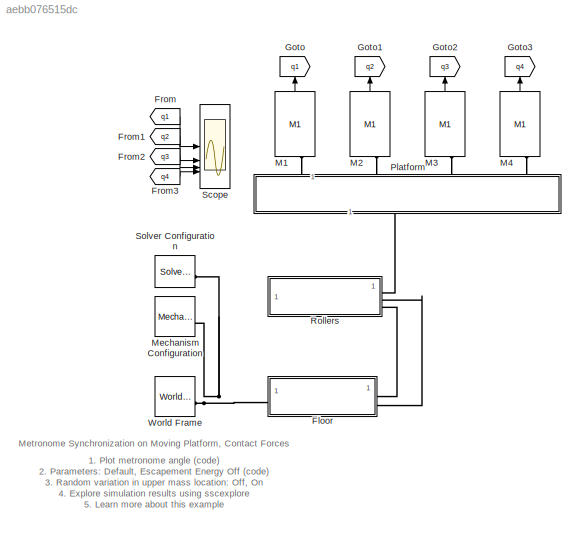
MODEL slx_aebb076515dc
KIND model
CONFIG AbsTol = 1e-3
CONFIG EnableMultiTasking = on
CONFIG MaxStep = 1e-2
CONFIG PreLoadFcn = sm_metronome_sync_param
CONFIG SolverName = ode23t
CONFIG StopTime = 5.52*20
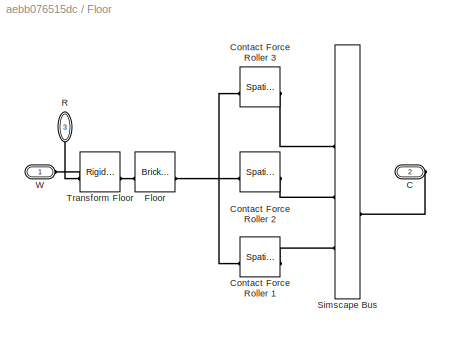
BLOCK [SubSystem] Floor
BLOCK [PMIOPort] Floor/C
  Port = 2
  Side = Right
BLOCK [Reference] Floor/Contact Force Roller 1  REF=sm_lib/Forces and
Torques/Spatial
Contact Force
  SourceBlock = sm_lib/Forces and\nTorques/Spatial\nContact Force
  SourceType = Spatial\nContact Force
BLOCK [Reference] Floor/Contact Force Roller 2  REF=sm_lib/Forces and
Torques/Spatial
Contact Force
  SourceBlock = sm_lib/Forces and\nTorques/Spatial\nContact Force
  SourceType = Spatial\nContact Force
BLOCK [Reference] Floor/Contact Force Roller 3  REF=sm_lib/Forces and
Torques/Spatial
Contact Force
  SourceBlock = sm_lib/Forces and\nTorques/Spatial\nContact Force
  SourceType = Spatial\nContact Force
BLOCK [Reference] Floor/Floor  REF=sm_lib/Body Elements/Brick Solid
  SourceBlock = sm_lib/Body Elements/Brick Solid
  SourceType = Brick Solid
BLOCK [PMIOPort] Floor/R
  NameLocation = right
  Port = 3
  Side = Right
BLOCK [SimscapeBus] Floor/Simscape Bus
  HierarchyStrings = R3;R2;R1
BLOCK [Reference] Floor/Transform Floor  REF=sm_lib/Frames and
Transforms/Rigid
Transform
  SourceBlock = sm_lib/Frames and\nTransforms/Rigid\nTransform
  SourceType = Rigid\nTransform
BLOCK [PMIOPort] Floor/W
  Side = Left
BLOCK [From] From
  GotoTag = q1
BLOCK [From] From1
  GotoTag = q2
BLOCK [From] From2
  GotoTag = q3
BLOCK [From] From3
  GotoTag = q4
BLOCK [Goto] Goto
  GotoTag = q1
  NameLocation = right
BLOCK [Goto] Goto1
  GotoTag = q2
  NameLocation = right
BLOCK [Goto] Goto2
  GotoTag = q3
  NameLocation = right
BLOCK [Goto] Goto3
  GotoTag = q4
  NameLocation = right
BLOCK [Reference] M1  REF=sm_metronome_lib/M1  (lib defined in slx_9433ba20aabc)
  NameLocation = right
  SourceBlock = sm_metronome_lib/M1
  SourceType = Metronome
BLOCK [Reference] M2  REF=sm_metronome_lib/M1  (lib defined in slx_9433ba20aabc)
  NameLocation = right
  SourceBlock = sm_metronome_lib/M1
  SourceType = Metronome
BLOCK [Reference] M3  REF=sm_metronome_lib/M1  (lib defined in slx_9433ba20aabc)
  NameLocation = right
  SourceBlock = sm_metronome_lib/M1
  SourceType = Metronome
BLOCK [Reference] M4  REF=sm_metronome_lib/M1  (lib defined in slx_9433ba20aabc)
  NameLocation = right
  SourceBlock = sm_metronome_lib/M1
  SourceType = Metronome
BLOCK [Reference] Mechanism Configuration  REF=sm_lib/Utilities/Mechanism
Configuration
  SourceBlock = sm_lib/Utilities/Mechanism\nConfiguration
  SourceType = Mechanism\nConfiguration
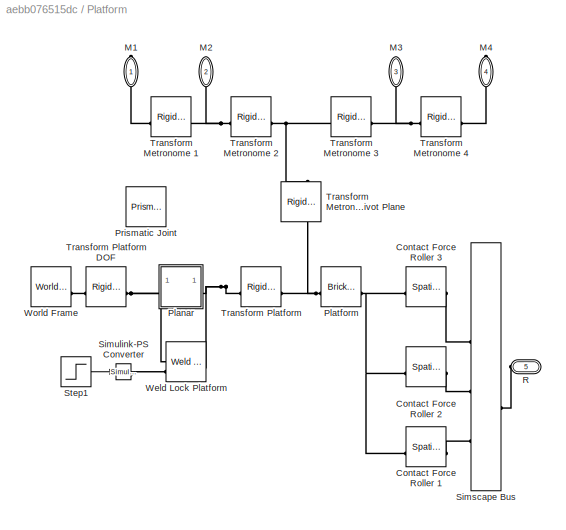
BLOCK [SubSystem] Platform
  NameLocation = right
BLOCK [Reference] Platform/Contact Force Roller 1  REF=sm_lib/Forces and
Torques/Spatial
Contact Force
  SourceBlock = sm_lib/Forces and\nTorques/Spatial\nContact Force
  SourceType = Spatial\nContact Force
BLOCK [Reference] Platform/Contact Force Roller 2  REF=sm_lib/Forces and
Torques/Spatial
Contact Force
  SourceBlock = sm_lib/Forces and\nTorques/Spatial\nContact Force
  SourceType = Spatial\nContact Force
BLOCK [Reference] Platform/Contact Force Roller 3  REF=sm_lib/Forces and
Torques/Spatial
Contact Force
  SourceBlock = sm_lib/Forces and\nTorques/Spatial\nContact Force
  SourceType = Spatial\nContact Force
BLOCK [PMIOPort] Platform/M1
  NameLocation = right
  Side = Right
BLOCK [PMIOPort] Platform/M2
  NameLocation = right
  Port = 2
  Side = Right
BLOCK [PMIOPort] Platform/M3
  NameLocation = left
  Port = 3
  Side = Right
BLOCK [PMIOPort] Platform/M4
  NameLocation = left
  Port = 4
  Side = Right
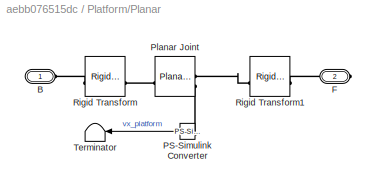
BLOCK [SubSystem] Platform/Planar
BLOCK [PMIOPort] Platform/Planar/B
  Side = Left
BLOCK [PMIOPort] Platform/Planar/F
  Port = 2
  Side = Right
BLOCK [Reference] Platform/Planar/PS-Simulink Converter  REF=nesl_utility/PS-Simulink
Converter
  NameLocation = top
  SourceBlock = nesl_utility/PS-Simulink\nConverter
  SourceType = PS-Simulink\nConverter
BLOCK [Reference] Platform/Planar/Planar Joint  REF=sm_lib/Joints/Planar Joint
  SourceBlock = sm_lib/Joints/Planar Joint
  SourceType = Planar Joint
BLOCK [Reference] Platform/Planar/Rigid Transform  REF=sm_lib/Frames and
Transforms/Rigid
Transform
  SourceBlock = sm_lib/Frames and\nTransforms/Rigid\nTransform
  SourceType = Rigid\nTransform
BLOCK [Reference] Platform/Planar/Rigid Transform1  REF=sm_lib/Frames and
Transforms/Rigid
Transform
  SourceBlock = sm_lib/Frames and\nTransforms/Rigid\nTransform
  SourceType = Rigid\nTransform
BLOCK [Terminator] Platform/Planar/Terminator
  NameLocation = top
BLOCK [Reference] Platform/Platform  REF=sm_lib/Body Elements/Brick Solid
  SourceBlock = sm_lib/Body Elements/Brick Solid
  SourceType = Brick Solid
BLOCK [Reference] Platform/Prismatic Joint  REF=sm_lib/Joints/Prismatic
Joint
  Commented = on
  SourceBlock = sm_lib/Joints/Prismatic\nJoint
  SourceType = Prismatic\nJoint
BLOCK [PMIOPort] Platform/R
  Port = 5
  Side = Left
BLOCK [SimscapeBus] Platform/Simscape Bus
  HierarchyStrings = R3;R2;R1
BLOCK [Reference] Platform/Simulink-PS Converter  REF=nesl_utility/Simulink-PS
Converter
  NameLocation = top
  SourceBlock = nesl_utility/Simulink-PS\nConverter
  SourceType = Simulink-PS\nConverter
BLOCK [Step] Platform/Step1
  FinalValue = -1
  NameLocation = top
  SampleTime = 0
  Time = t_unlock
BLOCK [Reference] Platform/Transform Metronome 1  REF=sm_lib/Frames and
Transforms/Rigid
Transform
  SourceBlock = sm_lib/Frames and\nTransforms/Rigid\nTransform
  SourceType = Rigid\nTransform
BLOCK [Reference] Platform/Transform Metronome 2  REF=sm_lib/Frames and
Transforms/Rigid
Transform
  SourceBlock = sm_lib/Frames and\nTransforms/Rigid\nTransform
  SourceType = Rigid\nTransform
BLOCK [Reference] Platform/Transform Metronome 3  REF=sm_lib/Frames and
Transforms/Rigid
Transform
  SourceBlock = sm_lib/Frames and\nTransforms/Rigid\nTransform
  SourceType = Rigid\nTransform
BLOCK [Reference] Platform/Transform Metronome 4  REF=sm_lib/Frames and
Transforms/Rigid
Transform
  SourceBlock = sm_lib/Frames and\nTransforms/Rigid\nTransform
  SourceType = Rigid\nTransform
BLOCK [Reference] Platform/Transform Metronome Pivot Plane  REF=sm_lib/Frames and
Transforms/Rigid
Transform
  NameLocation = right
  SourceBlock = sm_lib/Frames and\nTransforms/Rigid\nTransform
  SourceType = Rigid\nTransform
BLOCK [Reference] Platform/Transform Platform  REF=sm_lib/Frames and
Transforms/Rigid
Transform
  SourceBlock = sm_lib/Frames and\nTransforms/Rigid\nTransform
  SourceType = Rigid\nTransform
BLOCK [Reference] Platform/Transform Platform DOF  REF=sm_lib/Frames and
Transforms/Rigid
Transform
  SourceBlock = sm_lib/Frames and\nTransforms/Rigid\nTransform
  SourceType = Rigid\nTransform
BLOCK [Reference] Platform/Weld Lock Platform  REF=sm_lib/Joints/Weld Joint
  SourceBlock = sm_lib/Joints/Weld Joint
  SourceType = Weld Joint
BLOCK [Reference] Platform/World Frame  REF=sm_lib/Frames and
Transforms/World Frame
  SourceBlock = sm_lib/Frames and\nTransforms/World Frame
  SourceType = World Frame
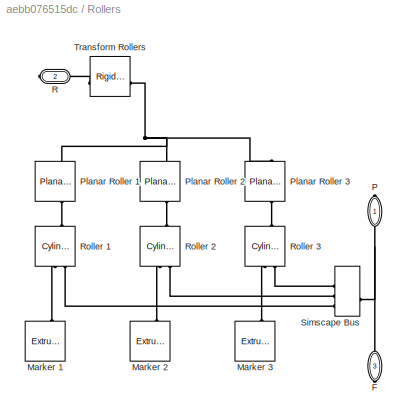
BLOCK [SubSystem] Rollers
BLOCK [PMIOPort] Rollers/F
  NameLocation = left
  Port = 3
  Side = Right
BLOCK [Reference] Rollers/Marker 1  REF=sm_lib/Body Elements/Extruded Solid
  NameLocation = right
  SourceBlock = sm_lib/Body Elements/Extruded Solid
  SourceType = Extruded Solid
BLOCK [Reference] Rollers/Marker 2  REF=sm_lib/Body Elements/Extruded Solid
  NameLocation = right
  SourceBlock = sm_lib/Body Elements/Extruded Solid
  SourceType = Extruded Solid
BLOCK [Reference] Rollers/Marker 3  REF=sm_lib/Body Elements/Extruded Solid
  NameLocation = right
  SourceBlock = sm_lib/Body Elements/Extruded Solid
  SourceType = Extruded Solid
BLOCK [PMIOPort] Rollers/P
  NameLocation = left
  Side = Right
BLOCK [Reference] Rollers/Planar Roller 1  REF=sm_lib/Joints/Planar Joint
  NameLocation = right
  SourceBlock = sm_lib/Joints/Planar Joint
  SourceType = Planar Joint
BLOCK [Reference] Rollers/Planar Roller 2  REF=sm_lib/Joints/Planar Joint
  NameLocation = right
  SourceBlock = sm_lib/Joints/Planar Joint
  SourceType = Planar Joint
BLOCK [Reference] Rollers/Planar Roller 3  REF=sm_lib/Joints/Planar Joint
  NameLocation = right
  SourceBlock = sm_lib/Joints/Planar Joint
  SourceType = Planar Joint
BLOCK [PMIOPort] Rollers/R
  Port = 2
  Side = Right
BLOCK [Reference] Rollers/Roller 1  REF=sm_lib/Body Elements/Cylindrical Solid
  NameLocation = right
  SourceBlock = sm_lib/Body Elements/Cylindrical Solid
  SourceType = Cylindrical Solid
BLOCK [Reference] Rollers/Roller 2  REF=sm_lib/Body Elements/Cylindrical Solid
  NameLocation = right
  SourceBlock = sm_lib/Body Elements/Cylindrical Solid
  SourceType = Cylindrical Solid
BLOCK [Reference] Rollers/Roller 3  REF=sm_lib/Body Elements/Cylindrical Solid
  NameLocation = right
  SourceBlock = sm_lib/Body Elements/Cylindrical Solid
  SourceType = Cylindrical Solid
BLOCK [SimscapeBus] Rollers/Simscape Bus
  HierarchyStrings = R3;R2;R1
BLOCK [Reference] Rollers/Transform Rollers  REF=sm_lib/Frames and
Transforms/Rigid
Transform
  SourceBlock = sm_lib/Frames and\nTransforms/Rigid\nTransform
  SourceType = Rigid\nTransform
BLOCK [Scope] Scope
  ActiveDisplayYMaximum = 1.14317
  ActiveDisplayYMinimum = -1.143
  DataLogging = on
  DataLoggingSaveFormat = Structure With Time
  DataLoggingVariableName = MetronomeAngles
  Floating = off
  GraphicalSettings = {"GraphicalSettings":{"LegacySettings":true,"Style":{"AxesScalingProperties":{"ScaleAxesLimitsAtStop":false},"Style":{"AxesColor":"[0 0 0]","BackgroundColor":"[0 0 0]","ChannelNames":[""],"ColorOrder":"[1 0.909803921568627 0.392156862745098;0.149019607843137 0.549019607843137 0.866666666666667;0.96078431372549 0.466666666666667 0.16078431372549;0.286274509803922 0.858823529411765 0.250980392156863...<+1151ch>
  MultipleDisplayCache = [{"MaxYLimMag":1.14317,"MaxYLimReal":1.14317,"MinYLimMag":0,"MinYLimReal":-1.143,"PlotAsMagnitudePhase":false,"ShowGrid":true,"ShowLegend":false,"Title":"%<SignalLabel>","YLabel":""}]
  NumInputPorts = 4
  ShowTimeAxisLabel = on
  TimeSpan = 5.52
  TimeSpanOverrunAction = Scroll
  TimeUnits = Seconds
  WasSavedAsWebScope = on
BLOCK [Reference] Solver Configuration  REF=nesl_utility/Solver
Configuration
  SourceBlock = nesl_utility/Solver\nConfiguration
  SourceType = Solver\nConfiguration
BLOCK [Reference] World Frame  REF=sm_lib/Frames and
Transforms/World Frame
  SourceBlock = sm_lib/Frames and\nTransforms/World Frame
  SourceType = World Frame
ANNOTATION (root): 1. Plot metronome angle ( code ) 2. Parameters: Default , Escapement Energy Off ( code ) 3. Random variation in upper mass location: Off , On 4. Explore simulation results using sscexplore 5. Learn more about this example
ANNOTATION (root): Metronome Synchronization on Moving Platform, Contact Forces
LINE From1:1 -> Scope:2
LINE From2:1 -> Scope:3
LINE From3:1 -> Scope:4
LINE From:1 -> Scope:1
LINE M1:1 -> Goto:1
LINE M2:1 -> Goto1:1
LINE M3:1 -> Goto2:1
LINE M4:1 -> Goto3:1
LINE Platform/Planar/PS-Simulink Converter:1 -> Platform/Planar/Terminator:1
LINE Platform/Step1:1 -> Platform/Simulink-PS Converter:1
PLINE Floor/C:RConn1 -- Floor/Simscape Bus:RConn1
PNET net1: Floor/Contact Force Roller 1:LConn1 -- Floor/Contact Force Roller 2:LConn1 -- Floor/Contact Force Roller 3:LConn1 -- Floor/Floor:LConn1
PLINE Floor/Contact Force Roller 1:RConn1 -- Floor/Simscape Bus:LConn3
PLINE Floor/Contact Force Roller 2:RConn1 -- Floor/Simscape Bus:LConn2
PLINE Floor/Contact Force Roller 3:RConn1 -- Floor/Simscape Bus:LConn1
PLINE Floor/Floor:RConn1 -- Floor/Transform Floor:RConn1
PNET net2: Floor/R:RConn1 -- Floor/Transform Floor:LConn1 -- Floor/W:RConn1
PNET net3: Floor:LConn1 -- Mechanism Configuration:RConn1 -- Solver Configuration:RConn1 -- World Frame:RConn1
PLINE Floor:RConn1 -- Rollers:RConn3
PLINE Floor:RConn2 -- Rollers:RConn2
PLINE M1:LConn1 -- Platform:RConn1
PLINE M2:LConn1 -- Platform:RConn2
PLINE M3:LConn1 -- Platform:RConn3
PLINE M4:LConn1 -- Platform:RConn4
PNET net4: Platform/Contact Force Roller 1:LConn1 -- Platform/Contact Force Roller 2:LConn1 -- Platform/Contact Force Roller 3:LConn1 -- Platform/Platform:LConn1
PLINE Platform/Contact Force Roller 1:RConn1 -- Platform/Simscape Bus:LConn3
PLINE Platform/Contact Force Roller 2:RConn1 -- Platform/Simscape Bus:LConn2
PLINE Platform/Contact Force Roller 3:RConn1 -- Platform/Simscape Bus:LConn1
PLINE Platform/M1:RConn1 -- Platform/Transform Metronome 1:RConn1
PNET net5: Platform/M2:RConn1 -- Platform/Transform Metronome 1:LConn1 -- Platform/Transform Metronome 2:RConn1
PNET net6: Platform/M3:RConn1 -- Platform/Transform Metronome 3:LConn1 -- Platform/Transform Metronome 4:RConn1
PLINE Platform/M4:RConn1 -- Platform/Transform Metronome 4:LConn1
PLINE Platform/Planar/B:RConn1 -- Platform/Planar/Rigid Transform:LConn1
PLINE Platform/Planar/F:RConn1 -- Platform/Planar/Rigid Transform1:LConn1
PLINE Platform/Planar/PS-Simulink Converter:LConn1 -- Platform/Planar/Planar Joint:RConn2
PLINE Platform/Planar/Planar Joint:LConn1 -- Platform/Planar/Rigid Transform:RConn1
PLINE Platform/Planar/Planar Joint:RConn1 -- Platform/Planar/Rigid Transform1:RConn1
PNET net7: Platform/Planar:LConn1 -- Platform/Transform Platform DOF:RConn1 -- Platform/Weld Lock Platform:LConn1
PNET net8: Platform/Planar:RConn1 -- Platform/Transform Platform:RConn1 -- Platform/Weld Lock Platform:RConn1
PNET net9: Platform/Platform:RConn1 -- Platform/Transform Metronome Pivot Plane:LConn1 -- Platform/Transform Platform:LConn1
PLINE Platform/R:RConn1 -- Platform/Simscape Bus:RConn1
PLINE Platform/Simulink-PS Converter:RConn1 -- Platform/Weld Lock Platform:LConn2
PNET net10: Platform/Transform Metronome 2:LConn1 -- Platform/Transform Metronome 3:RConn1 -- Platform/Transform Metronome Pivot Plane:RConn1
PLINE Platform/Transform Platform DOF:LConn1 -- Platform/World Frame:RConn1
PLINE Platform:LConn1 -- Rollers:RConn1
PNET net11: Rollers/F:RConn1 -- Rollers/P:RConn1 -- Rollers/Simscape Bus:RConn1
PLINE Rollers/Marker 1:RConn1 -- Rollers/Roller 1:LConn1
PLINE Rollers/Marker 2:RConn1 -- Rollers/Roller 2:LConn1
PLINE Rollers/Marker 3:RConn1 -- Rollers/Roller 3:LConn1
PNET net12: Rollers/Planar Roller 1:LConn1 -- Rollers/Planar Roller 2:LConn1 -- Rollers/Planar Roller 3:LConn1 -- Rollers/Transform Rollers:RConn1
PLINE Rollers/Planar Roller 1:RConn1 -- Rollers/Roller 1:RConn1
PLINE Rollers/Planar Roller 2:RConn1 -- Rollers/Roller 2:RConn1
PLINE Rollers/Planar Roller 3:RConn1 -- Rollers/Roller 3:RConn1
PLINE Rollers/R:RConn1 -- Rollers/Transform Rollers:LConn1
PLINE Rollers/Roller 1:LConn2 -- Rollers/Simscape Bus:LConn3
PLINE Rollers/Roller 2:LConn2 -- Rollers/Simscape Bus:LConn2
PLINE Rollers/Roller 3:LConn2 -- Rollers/Simscape Bus:LConn1
note: PNET lines group multi-terminal physical nets as a canonical sorted terminal list (undirected conserving connections); 2-terminal nets keep the pairwise PLINE form
